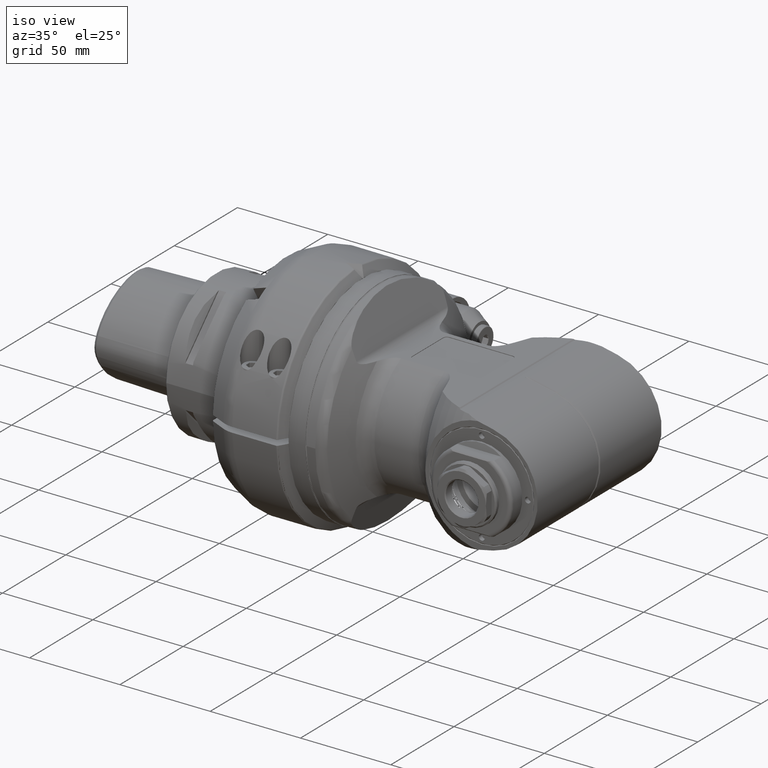
[diagram: clean part render]
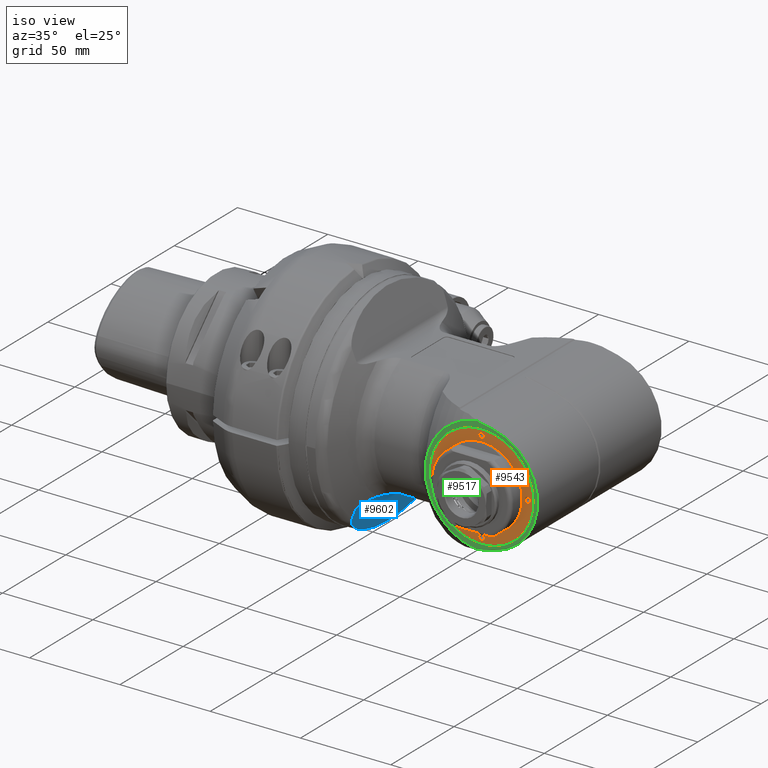
[diagram: same view with three faces highlighted in distinct colors, each labeled with its STEP entity id]
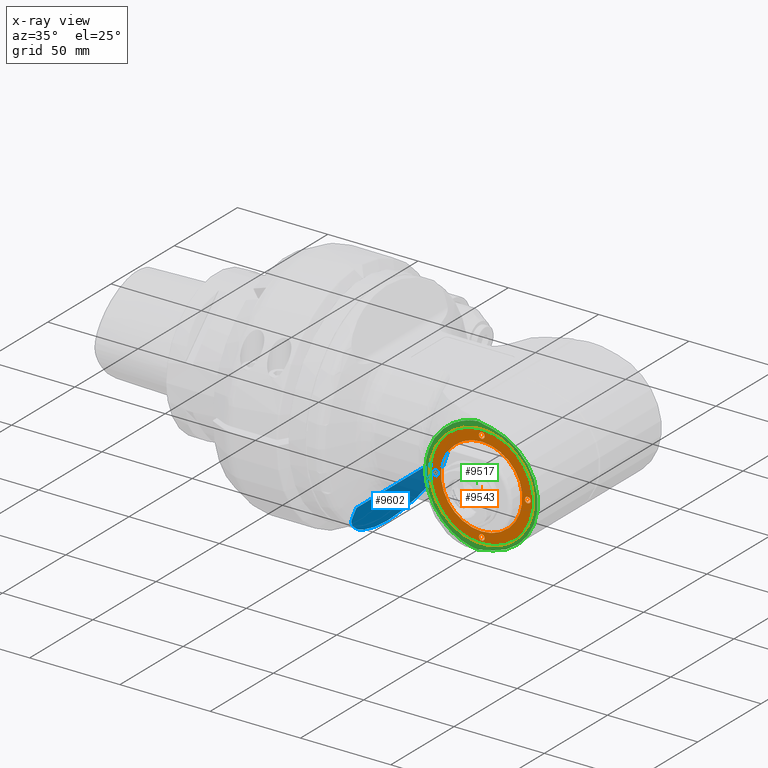
[diagram: x-ray of the same camera — body ghosted, the three highlighted faces saturated]
A machine part, iso view with three faces highlighted in distinct colors.
The next image is the same camera in x-ray (body ghosted, the three faces saturated) — at least one of them is partly hidden behind the body in this view.
Their STEP definitions:

[orange] entity #9543 — the highlighted planar face has unit normal (0, -1, 0).
#270=FACE_BOUND('',#1506,.T.);
#271=FACE_BOUND('',#1507,.T.);
#272=FACE_BOUND('',#1508,.T.);
#273=FACE_BOUND('',#1509,.T.);
#274=FACE_BOUND('',#1510,.T.);
#907=FACE_OUTER_BOUND('',#1505,.T.);
#1505=EDGE_LOOP('',(#6687));
#1506=EDGE_LOOP('',(#6688));
#1507=EDGE_LOOP('',(#6689));
#1508=EDGE_LOOP('',(#6690));
#1509=EDGE_LOOP('',(#6691));
#1510=EDGE_LOOP('',(#6692));
#3387=CIRCLE('',#10268,1.12204724409449);
#3388=CIRCLE('',#10270,0.885826771653543);
#3389=CIRCLE('',#10271,0.062992125984252);
#3390=CIRCLE('',#10272,0.062992125984252);
#3391=CIRCLE('',#10273,0.062992125984252);
#3392=CIRCLE('',#10274,0.062992125984252);
#3974=VERTEX_POINT('',#14861);
#3975=VERTEX_POINT('',#14865);
#3976=VERTEX_POINT('',#14867);
#3977=VERTEX_POINT('',#14869);
#3978=VERTEX_POINT('',#14871);
#3979=VERTEX_POINT('',#14873);
#5019=EDGE_CURVE('',#3974,#3974,#3387,.T.);
#5020=EDGE_CURVE('',#3975,#3975,#3388,.T.);
#5021=EDGE_CURVE('',#3976,#3976,#3389,.T.);
#5022=EDGE_CURVE('',#3977,#3977,#3390,.T.);
#5023=EDGE_CURVE('',#3978,#3978,#3391,.T.);
#5024=EDGE_CURVE('',#3979,#3979,#3392,.T.);
#6687=ORIENTED_EDGE('',*,*,#5019,.T.);
#6688=ORIENTED_EDGE('',*,*,#5020,.T.);
#6689=ORIENTED_EDGE('',*,*,#5021,.T.);
#6690=ORIENTED_EDGE('',*,*,#5022,.T.);
#6691=ORIENTED_EDGE('',*,*,#5023,.T.);
#6692=ORIENTED_EDGE('',*,*,#5024,.T.);
#9243=PLANE('',#10269);
#9543=ADVANCED_FACE('',(#907,#270,#271,#272,#273,#274),#9243,.T.);
#10268=AXIS2_PLACEMENT_3D('',#14863,#11590,#11591);
#10269=AXIS2_PLACEMENT_3D('',#14864,#11592,#11593);
#10270=AXIS2_PLACEMENT_3D('',#14866,#11594,#11595);
#10271=AXIS2_PLACEMENT_3D('',#14868,#11596,#11597);
#10272=AXIS2_PLACEMENT_3D('',#14870,#11598,#11599);
#10273=AXIS2_PLACEMENT_3D('',#14872,#11600,#11601);
#10274=AXIS2_PLACEMENT_3D('',#14874,#11602,#11603);
#11590=DIRECTION('center_axis',(0.,-1.,0.));
#11591=DIRECTION('ref_axis',(1.,0.,0.));
#11592=DIRECTION('center_axis',(0.,-1.,0.));
#11593=DIRECTION('ref_axis',(1.,0.,0.));
#11594=DIRECTION('center_axis',(0.,1.,0.));
#11595=DIRECTION('ref_axis',(0.,0.,-1.));
#11596=DIRECTION('center_axis',(0.,1.,0.));
#11597=DIRECTION('ref_axis',(0.,0.,1.));
#11598=DIRECTION('center_axis',(0.,1.,0.));
#11599=DIRECTION('ref_axis',(0.,0.,1.));
#11600=DIRECTION('center_axis',(0.,1.,0.));
#11601=DIRECTION('ref_axis',(0.,0.,1.));
#11602=DIRECTION('center_axis',(0.,1.,0.));
#11603=DIRECTION('ref_axis',(0.,0.,1.));
#14861=CARTESIAN_POINT('',(12.0694132677165,-1.92913385826772,0.));
#14863=CARTESIAN_POINT('Origin',(10.947366023622,-1.92913385826772,0.));
#14864=CARTESIAN_POINT('Origin',(9.98715460416535,-1.92913385826772,-0.0883592378263386));
#14865=CARTESIAN_POINT('',(10.947366023622,-1.92913385826772,-0.885826771653542));
#14866=CARTESIAN_POINT('Origin',(10.947366023622,-1.92913385826772,1.2370903184374E-15));
#14867=CARTESIAN_POINT('',(10.947366023622,-1.92913385826772,0.940944881889764));
#14868=CARTESIAN_POINT('Origin',(10.947366023622,-1.92913385826772,1.00393700787402));
#14869=CARTESIAN_POINT('',(11.9513030314961,-1.92913385826772,-0.062992125984252));
#14870=CARTESIAN_POINT('Origin',(11.9513030314961,-1.92913385826772,6.77607849335039E-16));
#14871=CARTESIAN_POINT('',(10.947366023622,-1.92913385826772,-1.06692913385827));
#14872=CARTESIAN_POINT('Origin',(10.947366023622,-1.92913385826772,-1.00393700787402));
#14873=CARTESIAN_POINT('',(9.94342901574803,-1.92913385826772,-0.062992125984252));
#14874=CARTESIAN_POINT('Origin',(9.94342901574803,-1.92913385826772,0.));

[blue] entity #9602 — the highlighted planar face has unit normal (-0.9397, -0, 0.342).
#242=ELLIPSE('',#10203,2.44579982641469,1.43669028712156);
#245=ELLIPSE('',#10211,2.44579982641469,1.43669028712156);
#250=ELLIPSE('',#10389,2.47190899905825,2.32283464566929);
#389=B_SPLINE_CURVE_WITH_KNOTS('',3,(#15221,#15222,#15223,#15224,#15225,
#15226,#15227,#15228,#15229,#15230,#15231,#15232,#15233,#15234,#15235,#15236),
 .UNSPECIFIED.,.F.,.F.,(4,2,2,2,2,2,2,4),(-11.6559211212488,-11.6409107028819,
-11.494381998211,-11.1814479597925,-10.7714451747578,-10.3614423897231,
-9.9947331046392,-9.68030428143882),.UNSPECIFIED.);
#390=B_SPLINE_CURVE_WITH_KNOTS('',3,(#15239,#15240,#15241,#15242,#15243,
#15244,#15245,#15246,#15247,#15248,#15249,#15250,#15251,#15252,#15253,#15254),
 .UNSPECIFIED.,.F.,.F.,(4,2,2,2,2,2,2,4),(-5.61335365542043,-5.29892483222005,
-4.93221554713619,-4.52221276210146,-4.11220997706673,-3.79927593864824,
-3.65274723397739,-3.63773681557559),.UNSPECIFIED.);
#966=FACE_OUTER_BOUND('',#1576,.T.);
#1576=EDGE_LOOP('',(#6944,#6945,#6946,#6947,#6948,#6949));
#2219=LINE('',#15218,#2823);
#2823=VECTOR('',#11876,2.83953714856535);
#3941=VERTEX_POINT('',#14635);
#3942=VERTEX_POINT('',#14653);
#3947=VERTEX_POINT('',#14696);
#3948=VERTEX_POINT('',#14698);
#4056=VERTEX_POINT('',#15220);
#4057=VERTEX_POINT('',#15237);
#4953=EDGE_CURVE('',#3942,#3941,#242,.T.);
#4962=EDGE_CURVE('',#3948,#3947,#245,.T.);
#5146=EDGE_CURVE('',#3948,#3941,#2219,.T.);
#5147=EDGE_CURVE('',#3947,#4056,#389,.T.);
#5148=EDGE_CURVE('',#4056,#4057,#250,.T.);
#5149=EDGE_CURVE('',#4057,#3942,#390,.T.);
#6944=ORIENTED_EDGE('',*,*,#4953,.T.);
#6945=ORIENTED_EDGE('',*,*,#5146,.F.);
#6946=ORIENTED_EDGE('',*,*,#4962,.T.);
#6947=ORIENTED_EDGE('',*,*,#5147,.T.);
#6948=ORIENTED_EDGE('',*,*,#5148,.T.);
#6949=ORIENTED_EDGE('',*,*,#5149,.T.);
#9269=PLANE('',#10388);
#9602=ADVANCED_FACE('',(#966),#9269,.F.);
#10203=AXIS2_PLACEMENT_3D('',#14654,#11445,#11446);
#10211=AXIS2_PLACEMENT_3D('',#14699,#11462,#11463);
#10388=AXIS2_PLACEMENT_3D('',#15219,#11877,#11878);
#10389=AXIS2_PLACEMENT_3D('',#15238,#11879,#11880);
#11445=DIRECTION('center_axis',(0.939692620785897,0.,-0.342020143325699));
#11446=DIRECTION('ref_axis',(-0.3420201433257,-5.36138331026489E-16,-0.939692620785897));
#11462=DIRECTION('center_axis',(0.939692620785897,0.,-0.342020143325699));
#11463=DIRECTION('ref_axis',(-0.3420201433257,-5.36138331026489E-16,-0.939692620785897));
#11876=DIRECTION('',(1.891516617804E-14,1.,5.162264102757E-14));
#11877=DIRECTION('center_axis',(-0.939692620785897,0.,0.342020143325699));
#11878=DIRECTION('ref_axis',(-0.342020143325699,0.,-0.939692620785897));
#11879=DIRECTION('center_axis',(0.939692620785897,0.,-0.342020143325699));
#11880=DIRECTION('ref_axis',(-0.342020143325699,0.,-0.939692620785897));
#14635=CARTESIAN_POINT('',(7.85847073250787,1.41976857428268,-1.44220155223189));
#14653=CARTESIAN_POINT('',(7.77201907744882,1.43491616671772,-1.67972552238819));
#14654=CARTESIAN_POINT('Origin',(7.73046023481939,-4.37095678986282E-16,
-1.7939075040845));
#14696=CARTESIAN_POINT('',(7.77201907744094,-1.43491616672126,-1.67972552240079));
#14698=CARTESIAN_POINT('',(7.85847073250787,-1.41976857428268,-1.44220155223228));
#14699=CARTESIAN_POINT('Origin',(7.73046023481939,-4.37095678986282E-16,
-1.7939075040845));
#15218=CARTESIAN_POINT('',(7.85847073250787,-1.41976857428268,-1.44220155223228));
#15219=CARTESIAN_POINT('Origin',(7.85847073250787,-2.78740166929134,-1.44220155223228));
#15220=CARTESIAN_POINT('',(7.59361203275591,-0.828925289005118,-2.16989484915039));
#15221=CARTESIAN_POINT('Ctrl Pts',(7.7720190774417,-1.43491616672177,-1.67972552240105));
#15222=CARTESIAN_POINT('Ctrl Pts',(7.77130109111955,-1.43497750537066,-1.68169817360864));
#15223=CARTESIAN_POINT('Ctrl Pts',(7.77059705920555,-1.43495538480733,-1.68363248539491));
#15224=CARTESIAN_POINT('Ctrl Pts',(7.76335260030087,-1.4340824758959,-1.70353647265169));
#15225=CARTESIAN_POINT('Ctrl Pts',(7.75586069361234,-1.42682643381995,-1.72412031710708));
#15226=CARTESIAN_POINT('Ctrl Pts',(7.73702903674694,-1.40224779705645,-1.7758598691157));
#15227=CARTESIAN_POINT('Ctrl Pts',(7.7233179080232,-1.37358577366405,-1.81353088567939));
#15228=CARTESIAN_POINT('Ctrl Pts',(7.69854389752123,-1.31231373172878,-1.88159692012289));
#15229=CARTESIAN_POINT('Ctrl Pts',(7.68460639105997,-1.26977252405391,-1.9198899044087));
#15230=CARTESIAN_POINT('Ctrl Pts',(7.65910764505786,-1.17871320443618,-1.9899471332739));
#15231=CARTESIAN_POINT('Ctrl Pts',(7.64754786604082,-1.13019159634936,-2.02170736509709));
#15232=CARTESIAN_POINT('Ctrl Pts',(7.62912405536223,-1.04365749384341,-2.07232636891684));
#15233=CARTESIAN_POINT('Ctrl Pts',(7.6202976757514,-0.997491526978431,-2.09657664759313));
#15234=CARTESIAN_POINT('Ctrl Pts',(7.60538035308025,-0.909574303835315,
-2.13756165479083));
#15235=CARTESIAN_POINT('Ctrl Pts',(7.599065752821,-0.868149143901945,-2.15491087641599));
#15236=CARTESIAN_POINT('Ctrl Pts',(7.59361203275464,-0.828925289005267,
-2.16989484915033));
#15237=CARTESIAN_POINT('',(7.59361203275591,0.828925289005118,-2.16989484915039));
#15238=CARTESIAN_POINT('Origin',(8.38338916933299,0.,0.));
#15239=CARTESIAN_POINT('Ctrl Pts',(7.59361203275464,0.828925289005268,-2.16989484915033));
#15240=CARTESIAN_POINT('Ctrl Pts',(7.599065752821,0.868149143901945,-2.15491087641599));
#15241=CARTESIAN_POINT('Ctrl Pts',(7.60538035308024,0.909574303835315,-2.13756165479083));
#15242=CARTESIAN_POINT('Ctrl Pts',(7.62029767575139,0.997491526978431,-2.09657664759313));
#15243=CARTESIAN_POINT('Ctrl Pts',(7.62912405536223,1.04365749384341,-2.07232636891684));
#15244=CARTESIAN_POINT('Ctrl Pts',(7.64754786604082,1.13019159634936,-2.02170736509709));
#15245=CARTESIAN_POINT('Ctrl Pts',(7.65910764505786,1.17871320443618,-1.9899471332739));
#15246=CARTESIAN_POINT('Ctrl Pts',(7.68460639105997,1.26977252405391,-1.9198899044087));
#15247=CARTESIAN_POINT('Ctrl Pts',(7.69854389752123,1.31231373172878,-1.88159692012289));
#15248=CARTESIAN_POINT('Ctrl Pts',(7.7233179080232,1.37358577366405,-1.81353088567939));
#15249=CARTESIAN_POINT('Ctrl Pts',(7.73702903674694,1.40224779705645,-1.7758598691157));
#15250=CARTESIAN_POINT('Ctrl Pts',(7.75586069361234,1.42682643381995,-1.72412031710708));
#15251=CARTESIAN_POINT('Ctrl Pts',(7.76335260030087,1.4340824758959,-1.70353647265169));
#15252=CARTESIAN_POINT('Ctrl Pts',(7.77059705920712,1.43495538480752,-1.68363248539062));
#15253=CARTESIAN_POINT('Ctrl Pts',(7.77130109112282,1.43497750537076,-1.68169817359965));
#15254=CARTESIAN_POINT('Ctrl Pts',(7.7720190774467,1.43491616672134,-1.67972552238731));

[green] entity #9517 — the highlighted planar face has unit normal (-0, 1, -0).
#269=FACE_BOUND('',#1479,.T.);
#586=(
BOUNDED_CURVE()
B_SPLINE_CURVE(2,(#14728,#14729,#14730),.UNSPECIFIED.,.F.,.F.)
B_SPLINE_CURVE_WITH_KNOTS((3,3),(-9.44718045125397,-6.38102259224216),
 .UNSPECIFIED.)
CURVE()
GEOMETRIC_REPRESENTATION_ITEM()
RATIONAL_B_SPLINE_CURVE((1.37294381060703,1.37294381060703,1.33365869793949))
REPRESENTATION_ITEM('')
);
#587=(
BOUNDED_CURVE()
B_SPLINE_CURVE(2,(#14739,#14740,#14741),.UNSPECIFIED.,.F.,.F.)
B_SPLINE_CURVE_WITH_KNOTS((3,3),(2.88902414097288,3.30501681912807),
 .UNSPECIFIED.)
CURVE()
GEOMETRIC_REPRESENTATION_ITEM()
RATIONAL_B_SPLINE_CURVE((1.00189283690557,1.00192044707155,1.00191676364348))
REPRESENTATION_ITEM('')
);
#588=(
BOUNDED_CURVE()
B_SPLINE_CURVE(2,(#14743,#14744,#14745),.UNSPECIFIED.,.F.,.F.)
B_SPLINE_CURVE_WITH_KNOTS((3,3),(2.73247816449151,3.28203525421437),
 .UNSPECIFIED.)
CURVE()
GEOMETRIC_REPRESENTATION_ITEM()
RATIONAL_B_SPLINE_CURVE((1.00758479886814,1.00783042569643,1.00786805298825))
REPRESENTATION_ITEM('')
);
#589=(
BOUNDED_CURVE()
B_SPLINE_CURVE(2,(#14747,#14748,#14749),.UNSPECIFIED.,.F.,.F.)
B_SPLINE_CURVE_WITH_KNOTS((3,3),(2.60296244814273,3.23090776126539),
 .UNSPECIFIED.)
CURVE()
GEOMETRIC_REPRESENTATION_ITEM()
RATIONAL_B_SPLINE_CURVE((1.01701917381883,1.01790887537414,1.01823736330519))
REPRESENTATION_ITEM('')
);
#590=(
BOUNDED_CURVE()
B_SPLINE_CURVE(2,(#14751,#14752,#14753),.UNSPECIFIED.,.F.,.F.)
B_SPLINE_CURVE_WITH_KNOTS((3,3),(2.4723201975659,3.24254715818028),
 .UNSPECIFIED.)
CURVE()
GEOMETRIC_REPRESENTATION_ITEM()
RATIONAL_B_SPLINE_CURVE((1.03008187879672,1.03261146661654,1.03379752613685))
REPRESENTATION_ITEM('')
);
#591=(
BOUNDED_CURVE()
B_SPLINE_CURVE(2,(#14754,#14755,#14756),.UNSPECIFIED.,.F.,.F.)
B_SPLINE_CURVE_WITH_KNOTS((3,3),(2.47400310157723,3.52086127835188),
 .UNSPECIFIED.)
CURVE()
GEOMETRIC_REPRESENTATION_ITEM()
RATIONAL_B_SPLINE_CURVE((1.05103468797867,1.05766659348911,1.0607732138904))
REPRESENTATION_ITEM('')
);
#592=(
BOUNDED_CURVE()
B_SPLINE_CURVE(2,(#14758,#14759,#14760),.UNSPECIFIED.,.F.,.F.)
B_SPLINE_CURVE_WITH_KNOTS((3,3),(-9.44718045125392,-6.38102259223833),
 .UNSPECIFIED.)
CURVE()
GEOMETRIC_REPRESENTATION_ITEM()
RATIONAL_B_SPLINE_CURVE((1.37294381060703,1.37294381060703,1.33365869793939))
REPRESENTATION_ITEM('')
);
#593=(
BOUNDED_CURVE()
B_SPLINE_CURVE(2,(#14762,#14763,#14764),.UNSPECIFIED.,.F.,.F.)
B_SPLINE_CURVE_WITH_KNOTS((3,3),(-6.41278495679031,-5.36592678001913),
 .UNSPECIFIED.)
CURVE()
GEOMETRIC_REPRESENTATION_ITEM()
RATIONAL_B_SPLINE_CURVE((1.05103468797871,1.05766659348912,1.0607732138904))
REPRESENTATION_ITEM('')
);
#594=(
BOUNDED_CURVE()
B_SPLINE_CURVE(2,(#14766,#14767,#14768),.UNSPECIFIED.,.F.,.F.)
B_SPLINE_CURVE_WITH_KNOTS((3,3),(-5.37267851345797,-4.60245155291283),
 .UNSPECIFIED.)
CURVE()
GEOMETRIC_REPRESENTATION_ITEM()
RATIONAL_B_SPLINE_CURVE((1.03008187879672,1.03261146661632,1.03379752613664))
REPRESENTATION_ITEM('')
);
#595=(
BOUNDED_CURVE()
B_SPLINE_CURVE(2,(#14770,#14771,#14772),.UNSPECIFIED.,.F.,.F.)
B_SPLINE_CURVE_WITH_KNOTS((3,3),(-4.59394733377212,-3.9660020205852),
 .UNSPECIFIED.)
CURVE()
GEOMETRIC_REPRESENTATION_ITEM()
RATIONAL_B_SPLINE_CURVE((1.01701917381865,1.01790887537411,1.01823736330519))
REPRESENTATION_ITEM('')
);
#596=(
BOUNDED_CURVE()
B_SPLINE_CURVE(2,(#14774,#14775,#14776),.UNSPECIFIED.,.F.,.F.)
B_SPLINE_CURVE_WITH_KNOTS((3,3),(-4.03042302727549,-3.48086593755284),
 .UNSPECIFIED.)
CURVE()
GEOMETRIC_REPRESENTATION_ITEM()
RATIONAL_B_SPLINE_CURVE((1.00758479886814,1.00783042569643,1.00786805298825))
REPRESENTATION_ITEM('')
);
#597=(
BOUNDED_CURVE()
B_SPLINE_CURVE(2,(#14778,#14779,#14780),.UNSPECIFIED.,.F.,.F.)
B_SPLINE_CURVE_WITH_KNOTS((3,3),(3.20708756850674,3.62308024666201),
 .UNSPECIFIED.)
CURVE()
GEOMETRIC_REPRESENTATION_ITEM()
RATIONAL_B_SPLINE_CURVE((1.00191676364348,1.00192044707155,1.00189283690557))
REPRESENTATION_ITEM('')
);
#881=FACE_OUTER_BOUND('',#1478,.T.);
#1478=EDGE_LOOP('',(#6561,#6562,#6563,#6564,#6565,#6566,#6567,#6568,#6569,
#6570,#6571,#6572,#6573,#6574,#6575));
#1479=EDGE_LOOP('',(#6576));
#2159=LINE('',#14737,#2763);
#2160=LINE('',#14781,#2764);
#2763=VECTOR('',#11490,0.349412462848662);
#2764=VECTOR('',#11491,0.349412462848662);
#3369=CIRCLE('',#10224,1.22047244094488);
#3370=CIRCLE('',#10225,1.14173228346457);
#3949=VERTEX_POINT('',#14723);
#3950=VERTEX_POINT('',#14727);
#3951=VERTEX_POINT('',#14733);
#3952=VERTEX_POINT('',#14734);
#3953=VERTEX_POINT('',#14736);
#3954=VERTEX_POINT('',#14738);
#3955=VERTEX_POINT('',#14742);
#3956=VERTEX_POINT('',#14746);
#3957=VERTEX_POINT('',#14750);
#3958=VERTEX_POINT('',#14757);
#3959=VERTEX_POINT('',#14761);
#3960=VERTEX_POINT('',#14765);
#3961=VERTEX_POINT('',#14769);
#3962=VERTEX_POINT('',#14773);
#3963=VERTEX_POINT('',#14777);
#3964=VERTEX_POINT('',#14782);
#4969=EDGE_CURVE('',#3949,#3950,#586,.T.);
#4971=EDGE_CURVE('',#3951,#3952,#3369,.T.);
#4972=EDGE_CURVE('',#3952,#3953,#2159,.T.);
#4973=EDGE_CURVE('',#3954,#3953,#587,.T.);
#4974=EDGE_CURVE('',#3955,#3954,#588,.T.);
#4975=EDGE_CURVE('',#3956,#3955,#589,.T.);
#4976=EDGE_CURVE('',#3957,#3956,#590,.T.);
#4977=EDGE_CURVE('',#3950,#3957,#591,.T.);
#4978=EDGE_CURVE('',#3949,#3958,#592,.T.);
#4979=EDGE_CURVE('',#3958,#3959,#593,.T.);
#4980=EDGE_CURVE('',#3959,#3960,#594,.T.);
#4981=EDGE_CURVE('',#3960,#3961,#595,.T.);
#4982=EDGE_CURVE('',#3961,#3962,#596,.T.);
#4983=EDGE_CURVE('',#3963,#3962,#597,.T.);
#4984=EDGE_CURVE('',#3963,#3951,#2160,.T.);
#4985=EDGE_CURVE('',#3964,#3964,#3370,.T.);
#6561=ORIENTED_EDGE('',*,*,#4971,.T.);
#6562=ORIENTED_EDGE('',*,*,#4972,.T.);
#6563=ORIENTED_EDGE('',*,*,#4973,.F.);
#6564=ORIENTED_EDGE('',*,*,#4974,.F.);
#6565=ORIENTED_EDGE('',*,*,#4975,.F.);
#6566=ORIENTED_EDGE('',*,*,#4976,.F.);
#6567=ORIENTED_EDGE('',*,*,#4977,.F.);
#6568=ORIENTED_EDGE('',*,*,#4969,.F.);
#6569=ORIENTED_EDGE('',*,*,#4978,.T.);
#6570=ORIENTED_EDGE('',*,*,#4979,.T.);
#6571=ORIENTED_EDGE('',*,*,#4980,.T.);
#6572=ORIENTED_EDGE('',*,*,#4981,.T.);
#6573=ORIENTED_EDGE('',*,*,#4982,.T.);
#6574=ORIENTED_EDGE('',*,*,#4983,.F.);
#6575=ORIENTED_EDGE('',*,*,#4984,.T.);
#6576=ORIENTED_EDGE('',*,*,#4985,.T.);
#9237=PLANE('',#10223);
#9517=ADVANCED_FACE('',(#881,#269),#9237,.F.);
#10223=AXIS2_PLACEMENT_3D('',#14732,#11486,#11487);
#10224=AXIS2_PLACEMENT_3D('',#14735,#11488,#11489);
#10225=AXIS2_PLACEMENT_3D('',#14783,#11492,#11493);
#11486=DIRECTION('center_axis',(0.,1.,0.));
#11487=DIRECTION('ref_axis',(1.,0.,0.));
#11488=DIRECTION('center_axis',(0.,-1.,0.));
#11489=DIRECTION('ref_axis',(0.207911690816993,0.,-0.978147600733968));
#11490=DIRECTION('',(-0.978147600733797,0.,0.207911690817799));
#11491=DIRECTION('',(0.978147600733797,0.,0.207911690817799));
#11492=DIRECTION('center_axis',(0.,1.,0.));
#11493=DIRECTION('ref_axis',(0.,0.,1.));
#14723=CARTESIAN_POINT('',(9.71493107963386,-1.92913385826772,-1.04902962956693E-14));
#14727=CARTESIAN_POINT('',(9.91178147333465,-1.92913385826772,0.671874317819291));
#14728=CARTESIAN_POINT('Ctrl Pts',(9.71493107963413,-1.92913385826772,-5.498780437426E-15));
#14729=CARTESIAN_POINT('Ctrl Pts',(9.71493107963413,-1.92913385826772,0.326324726829023));
#14730=CARTESIAN_POINT('Ctrl Pts',(9.91178147334038,-1.92913385826772,0.671874317829806));
#14732=CARTESIAN_POINT('Origin',(9.33319279527559,-1.92913385826772,-2.74015757480315));
#14733=CARTESIAN_POINT('',(11.2011165124134,-1.92913385826772,-1.19380218987205));
#14734=CARTESIAN_POINT('',(11.2011165124134,-1.92913385826772,1.19380218987205));
#14735=CARTESIAN_POINT('Origin',(10.947366023622,-1.92913385826772,0.));
#14736=CARTESIAN_POINT('',(10.8593395502126,-1.92913385826772,1.26644912581575));
#14737=CARTESIAN_POINT('',(11.2011165124134,-1.92913385826772,1.19380218987205));
#14738=CARTESIAN_POINT('',(10.6991830481378,-1.92913385826772,1.24073344059213));
#14739=CARTESIAN_POINT('Ctrl Pts',(10.6991830481378,-1.92913385826772,1.24073344059202));
#14740=CARTESIAN_POINT('Ctrl Pts',(10.7784399520884,-1.92913385826772,1.25355212914767));
#14741=CARTESIAN_POINT('Ctrl Pts',(10.8593395502126,-1.92913385826772,1.26644912581568));
#14742=CARTESIAN_POINT('',(10.502332654437,-1.92913385826773,1.17532833396734));
#14743=CARTESIAN_POINT('Ctrl Pts',(10.502332654437,-1.92913385826772,1.17532833396737));
#14744=CARTESIAN_POINT('Ctrl Pts',(10.5980933869254,-1.92913385826772,1.20778155868585));
#14745=CARTESIAN_POINT('Ctrl Pts',(10.6991830481377,-1.92913385826772,1.24073344059189));
#14746=CARTESIAN_POINT('',(10.3054822607362,-1.92913385826768,1.07045587991636));
#14747=CARTESIAN_POINT('Ctrl Pts',(10.3054822607551,-1.92913385826772,1.07045587992674));
#14748=CARTESIAN_POINT('Ctrl Pts',(10.3993112493459,-1.92913385826772,1.12227269516798));
#14749=CARTESIAN_POINT('Ctrl Pts',(10.5023326544371,-1.92913385826772,1.17532833396731));
#14750=CARTESIAN_POINT('',(10.1086318670354,-1.92913385826772,0.913710683415748));
#14751=CARTESIAN_POINT('Ctrl Pts',(10.1086318670353,-1.92913385826772,0.913710683415926));
#14752=CARTESIAN_POINT('Ctrl Pts',(10.1992816698791,-1.92913385826772,0.99078969304389));
#14753=CARTESIAN_POINT('Ctrl Pts',(10.3054822607553,-1.92913385826772,1.07045587993086));
#14754=CARTESIAN_POINT('Ctrl Pts',(9.9117814733328,-1.92913385826772,0.671874317818123));
#14755=CARTESIAN_POINT('Ctrl Pts',(9.99519467658462,-1.92913385826772,0.790135460285721));
#14756=CARTESIAN_POINT('Ctrl Pts',(10.1086318670351,-1.92913385826772,0.91371068341599));
#14757=CARTESIAN_POINT('',(9.91178147333465,-1.92913385826772,-0.671874317820472));
#14758=CARTESIAN_POINT('Ctrl Pts',(9.71493107963413,-1.92913385826772,-4.85186509184647E-15));
#14759=CARTESIAN_POINT('Ctrl Pts',(9.71493107963414,-1.92913385826772,-0.326324726829436));
#14760=CARTESIAN_POINT('Ctrl Pts',(9.91178147334089,-1.92913385826772,-0.671874317830696));
#14761=CARTESIAN_POINT('',(10.1086318670354,-1.92913385826772,-0.913710683415748));
#14762=CARTESIAN_POINT('Ctrl Pts',(9.91178147333335,-1.92913385826772,-0.671874317818911));
#14763=CARTESIAN_POINT('Ctrl Pts',(9.99519467658499,-1.92913385826772,-0.790135460286132));
#14764=CARTESIAN_POINT('Ctrl Pts',(10.1086318670351,-1.92913385826772,-0.913710683415989));
#14765=CARTESIAN_POINT('',(10.3054822607362,-1.92913385826772,-1.07045587991654));
#14766=CARTESIAN_POINT('Ctrl Pts',(10.1086318670353,-1.92913385826772,-0.913710683415926));
#14767=CARTESIAN_POINT('Ctrl Pts',(10.1992816698709,-1.92913385826772,-0.990789693036978));
#14768=CARTESIAN_POINT('Ctrl Pts',(10.3054822607362,-1.92913385826772,-1.07045587991655));
#14769=CARTESIAN_POINT('',(10.502332654437,-1.92913385826773,-1.17532833396734));
#14770=CARTESIAN_POINT('Ctrl Pts',(10.3054822607362,-1.92913385826772,-1.07045587991626));
#14771=CARTESIAN_POINT('Ctrl Pts',(10.3993112493356,-1.92913385826772,-1.12227269516269));
#14772=CARTESIAN_POINT('Ctrl Pts',(10.5023326544373,-1.92913385826772,-1.17532833396745));
#14773=CARTESIAN_POINT('',(10.6991830481378,-1.9291338582677,-1.24073344059196));
#14774=CARTESIAN_POINT('Ctrl Pts',(10.5023326544372,-1.92913385826772,-1.17532833396743));
#14775=CARTESIAN_POINT('Ctrl Pts',(10.5980933869256,-1.92913385826772,-1.20778155868591));
#14776=CARTESIAN_POINT('Ctrl Pts',(10.6991830481378,-1.92913385826772,-1.24073344059193));
#14777=CARTESIAN_POINT('',(10.8593395502126,-1.92913385826772,-1.26644912581575));
#14778=CARTESIAN_POINT('Ctrl Pts',(10.8593395502126,-1.92913385826772,-1.26644912581568));
#14779=CARTESIAN_POINT('Ctrl Pts',(10.7784399520884,-1.92913385826772,-1.25355212914767));
#14780=CARTESIAN_POINT('Ctrl Pts',(10.6991830481378,-1.92913385826772,-1.24073344059202));
#14781=CARTESIAN_POINT('',(10.8593395502126,-1.92913385826772,-1.26644912581575));
#14782=CARTESIAN_POINT('',(10.947366023622,-1.92913385826772,-1.14173228346457));
#14783=CARTESIAN_POINT('Origin',(10.947366023622,-1.92913385826772,0.));